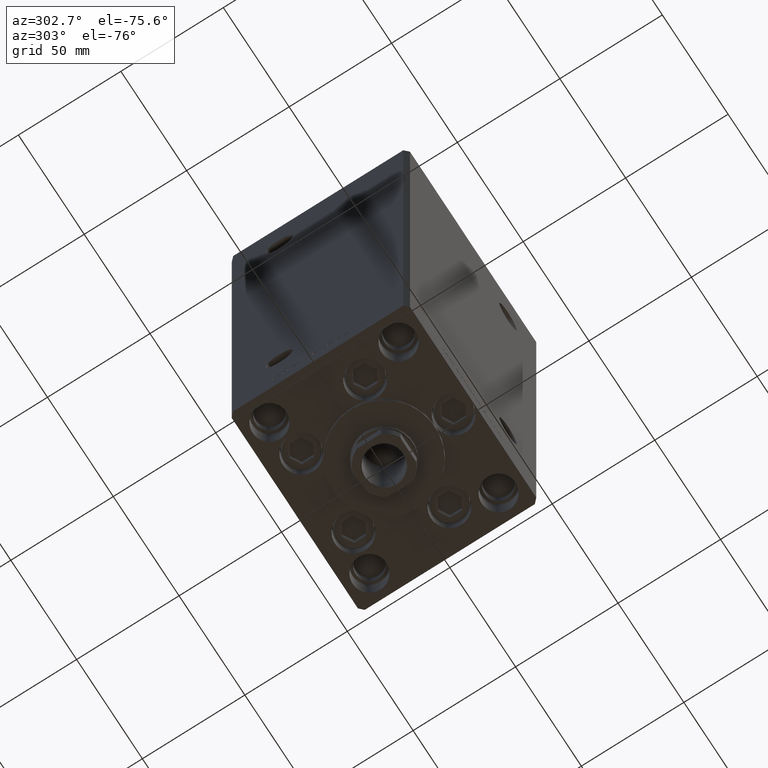
[diagram: clean part render]
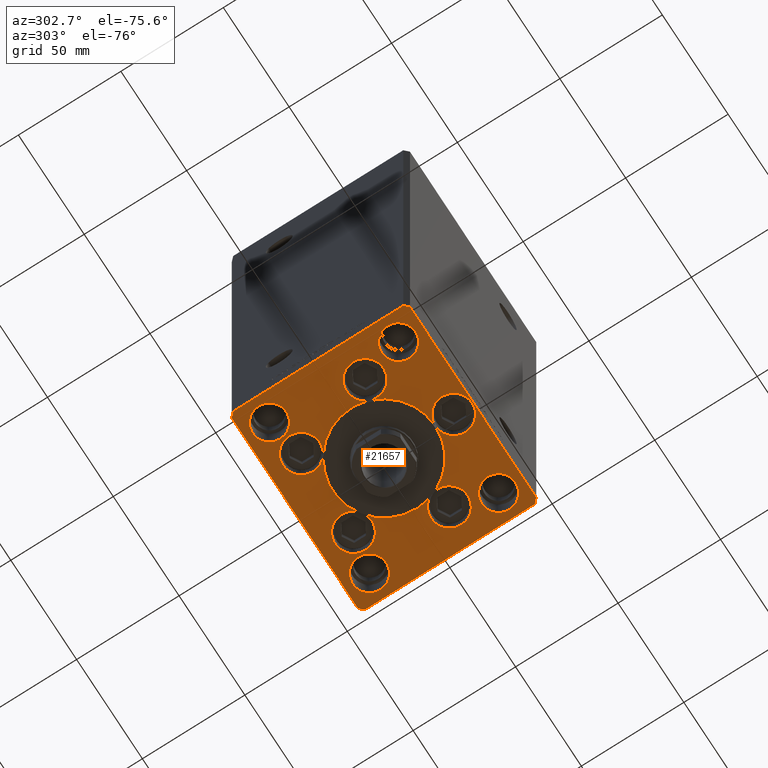
[diagram: same view with one face highlighted and labeled with its STEP entity id]
A machine part, auxiliary view. The second image highlights one B-rep face of the part: STEP entity #21657.
In plain terms, the highlighted planar face has unit normal (0, 0, -1).
Its self-contained STEP definition (entity closure, byte-faithful):
#150 = DIRECTION ( 'NONE',  ( 0.000000000000000000, 0.000000000000000000, 1.000000000000000000 ) ) ;
#298 = CARTESIAN_POINT ( 'NONE',  ( 23.57022603955158502, -8.333333333333332149, 0.000000000000000000 ) ) ;
#316 = CIRCLE ( 'NONE', #49678, 8.249999999999992895 ) ;
#436 = AXIS2_PLACEMENT_3D ( 'NONE', #7753, #37928, #23192 ) ;
#797 = VERTEX_POINT ( 'NONE', #14175 ) ;
#962 = CARTESIAN_POINT ( 'NONE',  ( 0.000000000000000000, -6.938893903907228378E-15, 0.000000000000000000 ) ) ;
#1204 = CIRCLE ( 'NONE', #35986, 8.250000000000000000 ) ;
#1205 = DIRECTION ( 'NONE',  ( 0.000000000000000000, 0.000000000000000000, 1.000000000000000000 ) ) ;
#1323 = CARTESIAN_POINT ( 'NONE',  ( -48.00000000000000711, -43.50000000000002842, 0.000000000000000000 ) ) ;
#1418 = CIRCLE ( 'NONE', #42633, 9.000000000000000000 ) ;
#1702 = CARTESIAN_POINT ( 'NONE',  ( 0.000000000000000000, 0.000000000000000000, 0.000000000000000000 ) ) ;
#1830 = AXIS2_PLACEMENT_3D ( 'NONE', #46050, #30580, #22488 ) ;
#1856 = EDGE_LOOP ( 'NONE', ( #42361, #22302 ) ) ;
#1965 = AXIS2_PLACEMENT_3D ( 'NONE', #17774, #44877, #2079 ) ;
#2050 = AXIS2_PLACEMENT_3D ( 'NONE', #12857, #1205, #40213 ) ;
#2058 = DIRECTION ( 'NONE',  ( 0.000000000000000000, 0.000000000000000000, 1.000000000000000000 ) ) ;
#2079 = DIRECTION ( 'NONE',  ( 1.000000000000000000, 0.000000000000000000, 0.000000000000000000 ) ) ;
#2217 = AXIS2_PLACEMENT_3D ( 'NONE', #11604, #7313, #27042 ) ;
#2361 = CARTESIAN_POINT ( 'NONE',  ( 25.00000000000000000, -3.877276906038844941E-15, 0.000000000000000000 ) ) ;
#2434 = CARTESIAN_POINT ( 'NONE',  ( 38.00000000000000000, 31.50000000000000000, 0.000000000000000000 ) ) ;
#2446 = FACE_BOUND ( 'NONE', #29222, .T. ) ;
#2810 = CIRCLE ( 'NONE', #49692, 9.000000000000000000 ) ;
#3248 = EDGE_CURVE ( 'NONE', #797, #16199, #37476, .T. ) ;
#3341 = ORIENTED_EDGE ( 'NONE', *, *, #31005, .T. ) ;
#3590 = DIRECTION ( 'NONE',  ( 0.000000000000000000, 0.000000000000000000, 1.000000000000000000 ) ) ;
#3642 = ORIENTED_EDGE ( 'NONE', *, *, #21186, .F. ) ;
#3864 = AXIS2_PLACEMENT_3D ( 'NONE', #13728, #22047, #40836 ) ;
#4055 = ORIENTED_EDGE ( 'NONE', *, *, #6376, .F. ) ;
#4194 = EDGE_CURVE ( 'NONE', #47315, #49186, #5185, .T. ) ;
#4888 = DIRECTION ( 'NONE',  ( 1.000000000000000000, 0.000000000000000000, 0.000000000000000000 ) ) ;
#4895 = EDGE_CURVE ( 'NONE', #17979, #12511, #17308, .T. ) ;
#5004 = EDGE_CURVE ( 'NONE', #12449, #12740, #2810, .T. ) ;
#5185 = CIRCLE ( 'NONE', #35916, 9.000000000000000000 ) ;
#5236 = EDGE_CURVE ( 'NONE', #40105, #34772, #37598, .T. ) ;
#5795 = DIRECTION ( 'NONE',  ( 1.000000000000000000, 0.000000000000000000, 0.000000000000000000 ) ) ;
#5926 = CARTESIAN_POINT ( 'NONE',  ( 38.00000000000000000, 31.50000000000000000, 0.000000000000000000 ) ) ;
#5992 = DIRECTION ( 'NONE',  ( 1.000000000000000000, 0.000000000000000000, 0.000000000000000000 ) ) ;
#6040 = CARTESIAN_POINT ( 'NONE',  ( -46.25000000000000711, -31.50000000000000711, 0.000000000000000000 ) ) ;
#6096 = CARTESIAN_POINT ( 'NONE',  ( 0.000000000000000000, -34.00000000000000000, 0.000000000000000000 ) ) ;
#6155 = ORIENTED_EDGE ( 'NONE', *, *, #6167, .F. ) ;
#6167 = EDGE_CURVE ( 'NONE', #46960, #30671, #35149, .T. ) ;
#6346 = EDGE_CURVE ( 'NONE', #34772, #31841, #7555, .T. ) ;
#6376 = EDGE_CURVE ( 'NONE', #31841, #30980, #45576, .T. ) ;
#6954 = EDGE_CURVE ( 'NONE', #12995, #23722, #14828, .T. ) ;
#7097 = DIRECTION ( 'NONE',  ( 1.000000000000000000, 0.000000000000000000, 0.000000000000000000 ) ) ;
#7164 = ORIENTED_EDGE ( 'NONE', *, *, #30764, .F. ) ;
#7313 = DIRECTION ( 'NONE',  ( 0.000000000000000000, 0.000000000000000000, 1.000000000000000000 ) ) ;
#7490 = EDGE_CURVE ( 'NONE', #38146, #48900, #20489, .T. ) ;
#7555 = CIRCLE ( 'NONE', #39206, 8.999999999999998224 ) ;
#7728 = DIRECTION ( 'NONE',  ( 1.000000000000000000, 0.000000000000000000, 0.000000000000000000 ) ) ;
#7753 = CARTESIAN_POINT ( 'NONE',  ( -32.05550741379015989, -11.33333333333332860, 0.000000000000000000 ) ) ;
#7939 = DIRECTION ( 'NONE',  ( 1.000000000000000000, 0.000000000000000000, 0.000000000000000000 ) ) ;
#7993 = DIRECTION ( 'NONE',  ( 0.000000000000000000, 0.000000000000000000, 1.000000000000000000 ) ) ;
#8085 = CARTESIAN_POINT ( 'NONE',  ( 9.000000000000000000, -34.00000000000000000, 0.000000000000000000 ) ) ;
#8125 = VERTEX_POINT ( 'NONE', #32187 ) ;
#8434 = CARTESIAN_POINT ( 'NONE',  ( -48.00000000000000000, 43.49999999999997158, 0.000000000000000000 ) ) ;
#8696 = ORIENTED_EDGE ( 'NONE', *, *, #25830, .F. ) ;
#9074 = DIRECTION ( 'NONE',  ( 1.000000000000000000, 0.000000000000000000, 0.000000000000000000 ) ) ;
#9121 = CIRCLE ( 'NONE', #36643, 25.00000000000000000 ) ;
#9244 = VECTOR ( 'NONE', #33036, 1000.000000000000000 ) ;
#9346 = EDGE_CURVE ( 'NONE', #11288, #27820, #47738, .T. ) ;
#9553 = PLANE ( 'NONE',  #41921 ) ;
#9804 = FACE_BOUND ( 'NONE', #13500, .T. ) ;
#9874 = CARTESIAN_POINT ( 'NONE',  ( 47.99999999999999289, 43.50000000000000000, 0.000000000000000000 ) ) ;
#9923 = LINE ( 'NONE', #1323, #48064 ) ;
#10131 = DIRECTION ( 'NONE',  ( 1.000000000000000000, 0.000000000000000000, 0.000000000000000000 ) ) ;
#10277 = CARTESIAN_POINT ( 'NONE',  ( -19.82068048781374969, 27.62499999999998934, 0.000000000000000000 ) ) ;
#10354 = EDGE_CURVE ( 'NONE', #12511, #17979, #1204, .T. ) ;
#10395 = EDGE_CURVE ( 'NONE', #35390, #8125, #27035, .T. ) ;
#10448 = DIRECTION ( 'NONE',  ( 1.000000000000000000, 0.000000000000000000, 0.000000000000000000 ) ) ;
#10555 = CARTESIAN_POINT ( 'NONE',  ( -38.00000000000000711, -31.50000000000000711, 0.000000000000000000 ) ) ;
#10778 = CARTESIAN_POINT ( 'NONE',  ( -50.00000000000000000, -41.50000000000004263, 0.000000000000000000 ) ) ;
#10806 = CARTESIAN_POINT ( 'NONE',  ( 0.000000000000000000, -6.938893903907228378E-15, 0.000000000000000000 ) ) ;
#10895 = CIRCLE ( 'NONE', #29469, 8.999999999999998224 ) ;
#10939 = ORIENTED_EDGE ( 'NONE', *, *, #6346, .F. ) ;
#11075 = EDGE_CURVE ( 'NONE', #12740, #44471, #32783, .T. ) ;
#11086 = DIRECTION ( 'NONE',  ( 1.000000000000000000, 0.000000000000000000, 0.000000000000000000 ) ) ;
#11223 = CARTESIAN_POINT ( 'NONE',  ( 48.00000000000000711, -43.49999999999992184, 0.000000000000000000 ) ) ;
#11288 = VERTEX_POINT ( 'NONE', #45503 ) ;
#11494 = DIRECTION ( 'NONE',  ( 0.7071067811865487940, -0.7071067811865463515, 0.000000000000000000 ) ) ;
#11604 = CARTESIAN_POINT ( 'NONE',  ( -19.82068048781374969, 27.62499999999998934, 0.000000000000000000 ) ) ;
#11808 = CARTESIAN_POINT ( 'NONE',  ( 0.000000000000000000, -6.938893903907228378E-15, 0.000000000000000000 ) ) ;
#11940 = ORIENTED_EDGE ( 'NONE', *, *, #39677, .F. ) ;
#12156 = EDGE_CURVE ( 'NONE', #30671, #48900, #18235, .T. ) ;
#12449 = VERTEX_POINT ( 'NONE', #49508 ) ;
#12478 = EDGE_CURVE ( 'NONE', #27820, #42138, #45716, .T. ) ;
#12511 = VERTEX_POINT ( 'NONE', #19835 ) ;
#12674 = DIRECTION ( 'NONE',  ( 1.000000000000000000, 0.000000000000000000, 0.000000000000000000 ) ) ;
#12740 = VERTEX_POINT ( 'NONE', #8085 ) ;
#12756 = ORIENTED_EDGE ( 'NONE', *, *, #10395, .F. ) ;
#12840 = DIRECTION ( 'NONE',  ( -0.7071067811865536790, -0.7071067811865414665, 0.000000000000000000 ) ) ;
#12854 = VERTEX_POINT ( 'NONE', #19960 ) ;
#12857 = CARTESIAN_POINT ( 'NONE',  ( 0.000000000000000000, -34.00000000000000000, 0.000000000000000000 ) ) ;
#12995 = VERTEX_POINT ( 'NONE', #32883 ) ;
#13094 = FACE_BOUND ( 'NONE', #38034, .T. ) ;
#13251 = DIRECTION ( 'NONE',  ( 0.000000000000000000, 0.000000000000000000, 1.000000000000000000 ) ) ;
#13500 = EDGE_LOOP ( 'NONE', ( #44423, #36261 ) ) ;
#13728 = CARTESIAN_POINT ( 'NONE',  ( 32.05550741379015989, -11.33333333333332860, 0.000000000000000000 ) ) ;
#14068 = DIRECTION ( 'NONE',  ( 0.000000000000000000, 0.000000000000000000, 1.000000000000000000 ) ) ;
#14175 = CARTESIAN_POINT ( 'NONE',  ( 47.99999999999999289, 43.50000000000000000, 0.000000000000000000 ) ) ;
#14381 = VERTEX_POINT ( 'NONE', #11223 ) ;
#14492 = LINE ( 'NONE', #33237, #32587 ) ;
#14656 = ORIENTED_EDGE ( 'NONE', *, *, #33564, .F. ) ;
#14729 = ORIENTED_EDGE ( 'NONE', *, *, #10354, .F. ) ;
#14828 = CIRCLE ( 'NONE', #21310, 8.250000000000000000 ) ;
#14846 = CARTESIAN_POINT ( 'NONE',  ( -10.82068048781375147, 27.62499999999998934, 0.000000000000000000 ) ) ;
#14949 = ORIENTED_EDGE ( 'NONE', *, *, #44733, .F. ) ;
#15342 = EDGE_CURVE ( 'NONE', #23722, #12995, #23987, .T. ) ;
#15348 = VERTEX_POINT ( 'NONE', #28419 ) ;
#15940 = EDGE_CURVE ( 'NONE', #29945, #47315, #32954, .T. ) ;
#15968 = CARTESIAN_POINT ( 'NONE',  ( -32.05550741379015989, -11.33333333333332860, 0.000000000000000000 ) ) ;
#16199 = VERTEX_POINT ( 'NONE', #8434 ) ;
#16204 = EDGE_CURVE ( 'NONE', #47315, #38146, #44280, .T. ) ;
#16235 = ORIENTED_EDGE ( 'NONE', *, *, #12156, .F. ) ;
#16456 = AXIS2_PLACEMENT_3D ( 'NONE', #41282, #18469, #10131 ) ;
#16533 = DIRECTION ( 'NONE',  ( 0.000000000000000000, 0.000000000000000000, 1.000000000000000000 ) ) ;
#17308 = CIRCLE ( 'NONE', #45618, 8.250000000000000000 ) ;
#17557 = AXIS2_PLACEMENT_3D ( 'NONE', #48198, #21329, #24362 ) ;
#17623 = CIRCLE ( 'NONE', #31333, 9.000000000000001776 ) ;
#17767 = EDGE_CURVE ( 'NONE', #44471, #12449, #44318, .T. ) ;
#17774 = CARTESIAN_POINT ( 'NONE',  ( 0.000000000000000000, -6.938893903907228378E-15, 0.000000000000000000 ) ) ;
#17979 = VERTEX_POINT ( 'NONE', #6040 ) ;
#18160 = AXIS2_PLACEMENT_3D ( 'NONE', #42697, #7993, #7728 ) ;
#18235 = CIRCLE ( 'NONE', #436, 9.000000000000001776 ) ;
#18291 = ORIENTED_EDGE ( 'NONE', *, *, #29396, .F. ) ;
#18469 = DIRECTION ( 'NONE',  ( 0.000000000000000000, 0.000000000000000000, 1.000000000000000000 ) ) ;
#18903 = CARTESIAN_POINT ( 'NONE',  ( -46.25000000000000000, 31.50000000000000000, 0.000000000000000000 ) ) ;
#18938 = CIRCLE ( 'NONE', #1965, 25.00000000000000000 ) ;
#19149 = CARTESIAN_POINT ( 'NONE',  ( 28.82068048781374969, 27.62499999999998934, 0.000000000000000000 ) ) ;
#19243 = VERTEX_POINT ( 'NONE', #41148 ) ;
#19380 = DIRECTION ( 'NONE',  ( 1.000000000000000000, 0.000000000000000000, 0.000000000000000000 ) ) ;
#19819 = CARTESIAN_POINT ( 'NONE',  ( 0.000000000000000000, -6.938893903907228378E-15, 0.000000000000000000 ) ) ;
#19835 = CARTESIAN_POINT ( 'NONE',  ( -29.75000000000000711, -31.50000000000000711, 0.000000000000000000 ) ) ;
#19960 = CARTESIAN_POINT ( 'NONE',  ( 50.00000000000000000, 41.50000000000000711, 0.000000000000000000 ) ) ;
#20254 = DIRECTION ( 'NONE',  ( 0.000000000000000000, 0.000000000000000000, 1.000000000000000000 ) ) ;
#20268 = VERTEX_POINT ( 'NONE', #298 ) ;
#20489 = CIRCLE ( 'NONE', #31013, 25.00000000000000000 ) ;
#20571 = EDGE_CURVE ( 'NONE', #48900, #46960, #17623, .T. ) ;
#21100 = CARTESIAN_POINT ( 'NONE',  ( -38.00000000000000000, 31.50000000000000000, 0.000000000000000000 ) ) ;
#21186 = EDGE_CURVE ( 'NONE', #20268, #35390, #47551, .T. ) ;
#21190 = DIRECTION ( 'NONE',  ( -0.000000000000000000, 0.000000000000000000, 1.000000000000000000 ) ) ;
#21310 = AXIS2_PLACEMENT_3D ( 'NONE', #21100, #13251, #4888 ) ;
#21329 = DIRECTION ( 'NONE',  ( 0.000000000000000000, 0.000000000000000000, 1.000000000000000000 ) ) ;
#21657 = ADVANCED_FACE ( 'NONE', ( #44516, #13094, #40707, #2446, #9804, #36903 ), #9553, .T. ) ;
#22047 = DIRECTION ( 'NONE',  ( 0.000000000000000000, 0.000000000000000000, 1.000000000000000000 ) ) ;
#22061 = ORIENTED_EDGE ( 'NONE', *, *, #7490, .F. ) ;
#22253 = ORIENTED_EDGE ( 'NONE', *, *, #5236, .F. ) ;
#22278 = VECTOR ( 'NONE', #11494, 1000.000000000000000 ) ;
#22302 = ORIENTED_EDGE ( 'NONE', *, *, #15342, .F. ) ;
#22458 = EDGE_CURVE ( 'NONE', #34172, #26142, #35465, .T. ) ;
#22488 = DIRECTION ( 'NONE',  ( 1.000000000000000000, 0.000000000000000000, 0.000000000000000000 ) ) ;
#22622 = DIRECTION ( 'NONE',  ( 0.000000000000000000, 0.000000000000000000, 1.000000000000000000 ) ) ;
#22628 = ORIENTED_EDGE ( 'NONE', *, *, #4194, .F. ) ;
#22917 = VECTOR ( 'NONE', #48388, 1000.000000000000000 ) ;
#23192 = DIRECTION ( 'NONE',  ( 1.000000000000000000, 0.000000000000000000, 0.000000000000000000 ) ) ;
#23373 = ORIENTED_EDGE ( 'NONE', *, *, #37392, .F. ) ;
#23722 = VERTEX_POINT ( 'NONE', #18903 ) ;
#23914 = ORIENTED_EDGE ( 'NONE', *, *, #16204, .F. ) ;
#23987 = CIRCLE ( 'NONE', #17557, 8.250000000000000000 ) ;
#24054 = ORIENTED_EDGE ( 'NONE', *, *, #27815, .F. ) ;
#24090 = ORIENTED_EDGE ( 'NONE', *, *, #36410, .T. ) ;
#24362 = DIRECTION ( 'NONE',  ( 1.000000000000000000, 0.000000000000000000, 0.000000000000000000 ) ) ;
#25044 = DIRECTION ( 'NONE',  ( 0.000000000000000000, 0.000000000000000000, 1.000000000000000000 ) ) ;
#25231 = CARTESIAN_POINT ( 'NONE',  ( -48.00000000000000000, 43.49999999999997158, 0.000000000000000000 ) ) ;
#25301 = DIRECTION ( 'NONE',  ( 1.000000000000000000, 0.000000000000000000, 0.000000000000000000 ) ) ;
#25525 = AXIS2_PLACEMENT_3D ( 'NONE', #11808, #150, #35095 ) ;
#25830 = EDGE_CURVE ( 'NONE', #8125, #20268, #38833, .T. ) ;
#25834 = DIRECTION ( 'NONE',  ( 0.000000000000000000, 0.000000000000000000, 1.000000000000000000 ) ) ;
#25885 = AXIS2_PLACEMENT_3D ( 'NONE', #26770, #29833, #11086 ) ;
#25971 = DIRECTION ( 'NONE',  ( 1.000000000000000000, 0.000000000000000000, 0.000000000000000000 ) ) ;
#26006 = CARTESIAN_POINT ( 'NONE',  ( -19.82068048781374969, 27.62499999999998934, 0.000000000000000000 ) ) ;
#26142 = VERTEX_POINT ( 'NONE', #38384 ) ;
#26212 = CARTESIAN_POINT ( 'NONE',  ( 48.00000000000000711, -43.49999999999992184, 0.000000000000000000 ) ) ;
#26253 = AXIS2_PLACEMENT_3D ( 'NONE', #15968, #35216, #26366 ) ;
#26364 = LINE ( 'NONE', #48942, #48823 ) ;
#26366 = DIRECTION ( 'NONE',  ( 1.000000000000000000, 0.000000000000000000, 0.000000000000000000 ) ) ;
#26770 = CARTESIAN_POINT ( 'NONE',  ( 32.05550741379015989, -11.33333333333332860, 0.000000000000000000 ) ) ;
#26852 = CIRCLE ( 'NONE', #1830, 25.00000000000000000 ) ;
#27035 = CIRCLE ( 'NONE', #18160, 9.000000000000001776 ) ;
#27042 = DIRECTION ( 'NONE',  ( 1.000000000000000000, 0.000000000000000000, 0.000000000000000000 ) ) ;
#27325 = CARTESIAN_POINT ( 'NONE',  ( 0.000000000000000000, -25.00000000000000000, 0.000000000000000000 ) ) ;
#27585 = CARTESIAN_POINT ( 'NONE',  ( -41.05550741379015989, -11.33333333333332682, 0.000000000000000000 ) ) ;
#27815 = EDGE_CURVE ( 'NONE', #15348, #19243, #30757, .T. ) ;
#27820 = VERTEX_POINT ( 'NONE', #10778 ) ;
#27852 = CARTESIAN_POINT ( 'NONE',  ( 19.82068048781374969, 27.62499999999998934, 0.000000000000000000 ) ) ;
#28118 = VECTOR ( 'NONE', #41689, 1000.000000000000114 ) ;
#28294 = ORIENTED_EDGE ( 'NONE', *, *, #33889, .F. ) ;
#28419 = CARTESIAN_POINT ( 'NONE',  ( 29.74999999999999645, 31.50000000000000000, 0.000000000000000000 ) ) ;
#28466 = CARTESIAN_POINT ( 'NONE',  ( -50.00000000000000711, 41.49999999999999289, 0.000000000000000000 ) ) ;
#28655 = AXIS2_PLACEMENT_3D ( 'NONE', #46525, #25834, #45358 ) ;
#28752 = EDGE_CURVE ( 'NONE', #16199, #11288, #36398, .T. ) ;
#29222 = EDGE_LOOP ( 'NONE', ( #14729, #36766 ) ) ;
#29396 = EDGE_CURVE ( 'NONE', #44471, #20268, #26852, .T. ) ;
#29422 = DIRECTION ( 'NONE',  ( 0.000000000000000000, 0.000000000000000000, 1.000000000000000000 ) ) ;
#29469 = AXIS2_PLACEMENT_3D ( 'NONE', #43825, #39764, #25301 ) ;
#29507 = DIRECTION ( 'NONE',  ( 1.000000000000000000, 0.000000000000000000, 0.000000000000000000 ) ) ;
#29833 = DIRECTION ( 'NONE',  ( 0.000000000000000000, 0.000000000000000000, 1.000000000000000000 ) ) ;
#29945 = VERTEX_POINT ( 'NONE', #38579 ) ;
#30580 = DIRECTION ( 'NONE',  ( 0.000000000000000000, 0.000000000000000000, 1.000000000000000000 ) ) ;
#30671 = VERTEX_POINT ( 'NONE', #40720 ) ;
#30757 = CIRCLE ( 'NONE', #43724, 8.250000000000000000 ) ;
#30764 = EDGE_CURVE ( 'NONE', #20268, #40105, #9121, .T. ) ;
#30980 = VERTEX_POINT ( 'NONE', #48948 ) ;
#31005 = EDGE_CURVE ( 'NONE', #41378, #12854, #14492, .T. ) ;
#31013 = AXIS2_PLACEMENT_3D ( 'NONE', #962, #32619, #9074 ) ;
#31165 = ORIENTED_EDGE ( 'NONE', *, *, #5004, .F. ) ;
#31278 = CARTESIAN_POINT ( 'NONE',  ( 23.05550741379015633, -11.33333333333332682, 0.000000000000000000 ) ) ;
#31333 = AXIS2_PLACEMENT_3D ( 'NONE', #43806, #25044, #5795 ) ;
#31469 = ORIENTED_EDGE ( 'NONE', *, *, #3248, .T. ) ;
#31481 = DIRECTION ( 'NONE',  ( 0.000000000000000000, 0.000000000000000000, 1.000000000000000000 ) ) ;
#31724 = DIRECTION ( 'NONE',  ( 1.000000000000000000, 0.000000000000000000, 0.000000000000000000 ) ) ;
#31841 = VERTEX_POINT ( 'NONE', #19149 ) ;
#31886 = AXIS2_PLACEMENT_3D ( 'NONE', #5926, #45195, #41636 ) ;
#32187 = CARTESIAN_POINT ( 'NONE',  ( 41.05550741379015989, -11.33333333333332860, 0.000000000000000000 ) ) ;
#32587 = VECTOR ( 'NONE', #41351, 1000.000000000000000 ) ;
#32619 = DIRECTION ( 'NONE',  ( 0.000000000000000000, 0.000000000000000000, 1.000000000000000000 ) ) ;
#32701 = DIRECTION ( 'NONE',  ( 1.000000000000000000, 0.000000000000000000, 0.000000000000000000 ) ) ;
#32765 = ORIENTED_EDGE ( 'NONE', *, *, #35921, .T. ) ;
#32783 = CIRCLE ( 'NONE', #2050, 9.000000000000000000 ) ;
#32873 = DIRECTION ( 'NONE',  ( 1.000000000000000000, 0.000000000000000000, 0.000000000000000000 ) ) ;
#32883 = CARTESIAN_POINT ( 'NONE',  ( -29.75000000000000000, 31.50000000000000000, 0.000000000000000000 ) ) ;
#32954 = CIRCLE ( 'NONE', #2217, 9.000000000000000000 ) ;
#33036 = DIRECTION ( 'NONE',  ( 8.360113137237620037E-17, -1.000000000000000000, 0.000000000000000000 ) ) ;
#33237 = CARTESIAN_POINT ( 'NONE',  ( 50.00000000000000000, -41.49999999999992895, 0.000000000000000000 ) ) ;
#33564 = EDGE_CURVE ( 'NONE', #19243, #15348, #35944, .T. ) ;
#33889 = EDGE_CURVE ( 'NONE', #48900, #44471, #18938, .T. ) ;
#34056 = VECTOR ( 'NONE', #12840, 1000.000000000000000 ) ;
#34152 = CARTESIAN_POINT ( 'NONE',  ( -23.57022603955158502, -8.333333333333332149, 0.000000000000000000 ) ) ;
#34172 = VERTEX_POINT ( 'NONE', #41763 ) ;
#34270 = DIRECTION ( 'NONE',  ( 1.000000000000000000, 0.000000000000000000, 0.000000000000000000 ) ) ;
#34521 = CARTESIAN_POINT ( 'NONE',  ( 38.00000000000000711, -31.50000000000000711, 0.000000000000000000 ) ) ;
#34772 = VERTEX_POINT ( 'NONE', #36091 ) ;
#35095 = DIRECTION ( 'NONE',  ( 1.000000000000000000, 0.000000000000000000, 0.000000000000000000 ) ) ;
#35149 = CIRCLE ( 'NONE', #26253, 9.000000000000001776 ) ;
#35216 = DIRECTION ( 'NONE',  ( 0.000000000000000000, 0.000000000000000000, 1.000000000000000000 ) ) ;
#35390 = VERTEX_POINT ( 'NONE', #31278 ) ;
#35465 = CIRCLE ( 'NONE', #50040, 8.249999999999992895 ) ;
#35560 = EDGE_LOOP ( 'NONE', ( #11940, #23373, #4055, #10939, #22253, #7164, #8696, #12756, #3642, #18291, #38497, #31165, #46902, #28294, #16235, #6155, #41326, #22061, #23914, #47964, #14949, #22628 ) ) ;
#35916 = AXIS2_PLACEMENT_3D ( 'NONE', #26006, #44538, #32873 ) ;
#35921 = EDGE_CURVE ( 'NONE', #12854, #797, #26364, .T. ) ;
#35944 = CIRCLE ( 'NONE', #31886, 8.250000000000000000 ) ;
#35986 = AXIS2_PLACEMENT_3D ( 'NONE', #10555, #41453, #19380 ) ;
#36091 = CARTESIAN_POINT ( 'NONE',  ( 14.57402977045128623, 20.31249999999998579, 0.000000000000000000 ) ) ;
#36207 = AXIS2_PLACEMENT_3D ( 'NONE', #19819, #31481, #31724 ) ;
#36261 = ORIENTED_EDGE ( 'NONE', *, *, #22458, .F. ) ;
#36398 = LINE ( 'NONE', #25231, #34056 ) ;
#36410 = EDGE_CURVE ( 'NONE', #42138, #14381, #9923, .T. ) ;
#36643 = AXIS2_PLACEMENT_3D ( 'NONE', #10806, #16533, #7939 ) ;
#36766 = ORIENTED_EDGE ( 'NONE', *, *, #4895, .F. ) ;
#36903 = FACE_OUTER_BOUND ( 'NONE', #42875, .T. ) ;
#37111 = EDGE_CURVE ( 'NONE', #26142, #34172, #316, .T. ) ;
#37239 = CARTESIAN_POINT ( 'NONE',  ( -48.00000000000000711, -43.50000000000002842, 0.000000000000000000 ) ) ;
#37392 = EDGE_CURVE ( 'NONE', #30980, #34772, #10895, .T. ) ;
#37476 = LINE ( 'NONE', #9874, #22917 ) ;
#37544 = CARTESIAN_POINT ( 'NONE',  ( 38.00000000000000711, -31.50000000000000711, 0.000000000000000000 ) ) ;
#37563 = CARTESIAN_POINT ( 'NONE',  ( -38.00000000000000711, -31.50000000000000711, 0.000000000000000000 ) ) ;
#37598 = CIRCLE ( 'NONE', #28655, 25.00000000000000000 ) ;
#37928 = DIRECTION ( 'NONE',  ( 0.000000000000000000, 0.000000000000000000, 1.000000000000000000 ) ) ;
#38034 = EDGE_LOOP ( 'NONE', ( #14656, #24054 ) ) ;
#38058 = DIRECTION ( 'NONE',  ( 1.000000000000000000, 0.000000000000000000, 0.000000000000000000 ) ) ;
#38146 = VERTEX_POINT ( 'NONE', #42836 ) ;
#38275 = DIRECTION ( 'NONE',  ( -0.7071067811865512365, 0.7071067811865439090, 0.000000000000000000 ) ) ;
#38384 = CARTESIAN_POINT ( 'NONE',  ( 46.25000000000000000, -31.50000000000000711, 0.000000000000000000 ) ) ;
#38497 = ORIENTED_EDGE ( 'NONE', *, *, #11075, .F. ) ;
#38579 = CARTESIAN_POINT ( 'NONE',  ( -28.82068048781374969, 27.62499999999998934, 0.000000000000000000 ) ) ;
#38833 = CIRCLE ( 'NONE', #25885, 9.000000000000001776 ) ;
#39206 = AXIS2_PLACEMENT_3D ( 'NONE', #27852, #20254, #12674 ) ;
#39268 = CIRCLE ( 'NONE', #25525, 25.00000000000000000 ) ;
#39677 = EDGE_CURVE ( 'NONE', #34772, #47315, #39268, .T. ) ;
#39764 = DIRECTION ( 'NONE',  ( 0.000000000000000000, 0.000000000000000000, 1.000000000000000000 ) ) ;
#40105 = VERTEX_POINT ( 'NONE', #2361 ) ;
#40213 = DIRECTION ( 'NONE',  ( 1.000000000000000000, 0.000000000000000000, 0.000000000000000000 ) ) ;
#40340 = DIRECTION ( 'NONE',  ( 1.000000000000000000, 1.156482317317871331E-15, 0.000000000000000000 ) ) ;
#40546 = ORIENTED_EDGE ( 'NONE', *, *, #9346, .T. ) ;
#40707 = FACE_BOUND ( 'NONE', #1856, .T. ) ;
#40720 = CARTESIAN_POINT ( 'NONE',  ( -23.05550741379015633, -11.33333333333332860, 0.000000000000000000 ) ) ;
#40836 = DIRECTION ( 'NONE',  ( 1.000000000000000000, 0.000000000000000000, 0.000000000000000000 ) ) ;
#41148 = CARTESIAN_POINT ( 'NONE',  ( 46.25000000000000000, 31.50000000000000000, 0.000000000000000000 ) ) ;
#41282 = CARTESIAN_POINT ( 'NONE',  ( 19.82068048781374969, 27.62499999999998934, 0.000000000000000000 ) ) ;
#41326 = ORIENTED_EDGE ( 'NONE', *, *, #20571, .F. ) ;
#41351 = DIRECTION ( 'NONE',  ( 0.000000000000000000, 1.000000000000000000, 0.000000000000000000 ) ) ;
#41378 = VERTEX_POINT ( 'NONE', #49154 ) ;
#41439 = DIRECTION ( 'NONE',  ( 0.000000000000000000, 0.000000000000000000, 1.000000000000000000 ) ) ;
#41453 = DIRECTION ( 'NONE',  ( 0.000000000000000000, 0.000000000000000000, 1.000000000000000000 ) ) ;
#41636 = DIRECTION ( 'NONE',  ( 1.000000000000000000, 0.000000000000000000, 0.000000000000000000 ) ) ;
#41689 = DIRECTION ( 'NONE',  ( 0.7071067811865474617, 0.7071067811865474617, 0.000000000000000000 ) ) ;
#41763 = CARTESIAN_POINT ( 'NONE',  ( 29.75000000000001066, -31.50000000000000711, 0.000000000000000000 ) ) ;
#41806 = CARTESIAN_POINT ( 'NONE',  ( 0.000000000000000000, -34.00000000000000000, 0.000000000000000000 ) ) ;
#41917 = CARTESIAN_POINT ( 'NONE',  ( -50.00000000000000000, -41.50000000000004263, 0.000000000000000000 ) ) ;
#41921 = AXIS2_PLACEMENT_3D ( 'NONE', #1702, #21190, #5992 ) ;
#42138 = VERTEX_POINT ( 'NONE', #37239 ) ;
#42361 = ORIENTED_EDGE ( 'NONE', *, *, #6954, .F. ) ;
#42633 = AXIS2_PLACEMENT_3D ( 'NONE', #10277, #14068, #29507 ) ;
#42697 = CARTESIAN_POINT ( 'NONE',  ( 32.05550741379015989, -11.33333333333332860, 0.000000000000000000 ) ) ;
#42836 = CARTESIAN_POINT ( 'NONE',  ( -25.00000000000000000, -6.938893903907228378E-15, 0.000000000000000000 ) ) ;
#42875 = EDGE_LOOP ( 'NONE', ( #46144, #24090, #48259, #3341, #32765, #31469, #49608, #40546 ) ) ;
#43724 = AXIS2_PLACEMENT_3D ( 'NONE', #2434, #41439, #25971 ) ;
#43806 = CARTESIAN_POINT ( 'NONE',  ( -32.05550741379015989, -11.33333333333332860, 0.000000000000000000 ) ) ;
#43825 = CARTESIAN_POINT ( 'NONE',  ( 19.82068048781374969, 27.62499999999998934, 0.000000000000000000 ) ) ;
#44280 = CIRCLE ( 'NONE', #36207, 25.00000000000000000 ) ;
#44318 = CIRCLE ( 'NONE', #49193, 9.000000000000000000 ) ;
#44423 = ORIENTED_EDGE ( 'NONE', *, *, #37111, .F. ) ;
#44471 = VERTEX_POINT ( 'NONE', #27325 ) ;
#44516 = FACE_BOUND ( 'NONE', #35560, .T. ) ;
#44538 = DIRECTION ( 'NONE',  ( 0.000000000000000000, 0.000000000000000000, 1.000000000000000000 ) ) ;
#44733 = EDGE_CURVE ( 'NONE', #49186, #29945, #1418, .T. ) ;
#44877 = DIRECTION ( 'NONE',  ( 0.000000000000000000, 0.000000000000000000, 1.000000000000000000 ) ) ;
#45195 = DIRECTION ( 'NONE',  ( 0.000000000000000000, 0.000000000000000000, 1.000000000000000000 ) ) ;
#45202 = CARTESIAN_POINT ( 'NONE',  ( -14.57402977045128978, 20.31249999999999289, 0.000000000000000000 ) ) ;
#45358 = DIRECTION ( 'NONE',  ( 1.000000000000000000, 0.000000000000000000, 0.000000000000000000 ) ) ;
#45483 = LINE ( 'NONE', #26212, #28118 ) ;
#45503 = CARTESIAN_POINT ( 'NONE',  ( -50.00000000000000711, 41.49999999999999289, 0.000000000000000000 ) ) ;
#45540 = EDGE_CURVE ( 'NONE', #14381, #41378, #45483, .T. ) ;
#45576 = CIRCLE ( 'NONE', #16456, 8.999999999999998224 ) ;
#45618 = AXIS2_PLACEMENT_3D ( 'NONE', #37563, #3590, #38058 ) ;
#45716 = LINE ( 'NONE', #41917, #22278 ) ;
#46050 = CARTESIAN_POINT ( 'NONE',  ( 0.000000000000000000, -6.938893903907228378E-15, 0.000000000000000000 ) ) ;
#46144 = ORIENTED_EDGE ( 'NONE', *, *, #12478, .T. ) ;
#46525 = CARTESIAN_POINT ( 'NONE',  ( 0.000000000000000000, -6.938893903907228378E-15, 0.000000000000000000 ) ) ;
#46902 = ORIENTED_EDGE ( 'NONE', *, *, #17767, .F. ) ;
#46960 = VERTEX_POINT ( 'NONE', #27585 ) ;
#47315 = VERTEX_POINT ( 'NONE', #45202 ) ;
#47551 = CIRCLE ( 'NONE', #3864, 9.000000000000001776 ) ;
#47738 = LINE ( 'NONE', #28466, #9244 ) ;
#47964 = ORIENTED_EDGE ( 'NONE', *, *, #15940, .F. ) ;
#48064 = VECTOR ( 'NONE', #40340, 1000.000000000000000 ) ;
#48198 = CARTESIAN_POINT ( 'NONE',  ( -38.00000000000000000, 31.50000000000000000, 0.000000000000000000 ) ) ;
#48259 = ORIENTED_EDGE ( 'NONE', *, *, #45540, .T. ) ;
#48388 = DIRECTION ( 'NONE',  ( -1.000000000000000000, -2.891205793294678326E-16, 0.000000000000000000 ) ) ;
#48823 = VECTOR ( 'NONE', #38275, 999.9999999999998863 ) ;
#48900 = VERTEX_POINT ( 'NONE', #34152 ) ;
#48911 = DIRECTION ( 'NONE',  ( 0.000000000000000000, 0.000000000000000000, 1.000000000000000000 ) ) ;
#48942 = CARTESIAN_POINT ( 'NONE',  ( 50.00000000000000000, 41.50000000000000711, 0.000000000000000000 ) ) ;
#48948 = CARTESIAN_POINT ( 'NONE',  ( 10.82068048781375147, 27.62499999999998934, 0.000000000000000000 ) ) ;
#49154 = CARTESIAN_POINT ( 'NONE',  ( 50.00000000000000000, -41.49999999999992895, 0.000000000000000000 ) ) ;
#49186 = VERTEX_POINT ( 'NONE', #14846 ) ;
#49193 = AXIS2_PLACEMENT_3D ( 'NONE', #41806, #48911, #7097 ) ;
#49508 = CARTESIAN_POINT ( 'NONE',  ( -9.000000000000000000, -34.00000000000000000, 0.000000000000000000 ) ) ;
#49608 = ORIENTED_EDGE ( 'NONE', *, *, #28752, .T. ) ;
#49678 = AXIS2_PLACEMENT_3D ( 'NONE', #34521, #22622, #34270 ) ;
#49692 = AXIS2_PLACEMENT_3D ( 'NONE', #6096, #2058, #32701 ) ;
#50040 = AXIS2_PLACEMENT_3D ( 'NONE', #37544, #29422, #10448 ) ;